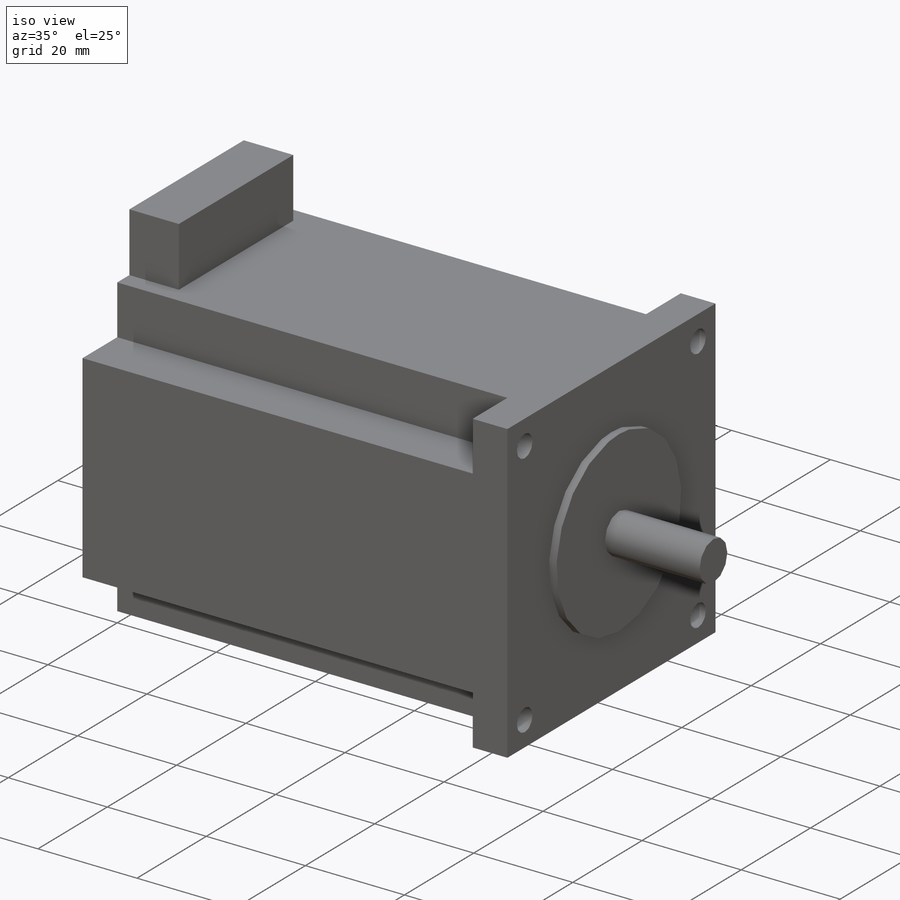
[diagram: iso view]
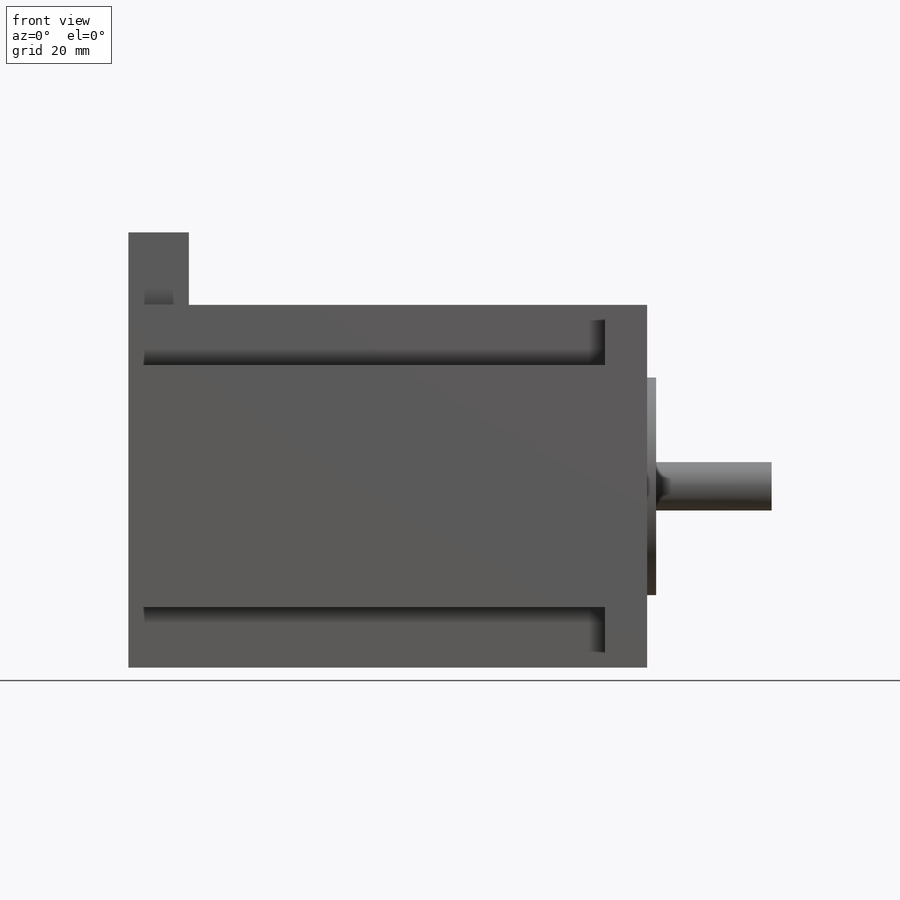
[diagram: front view]
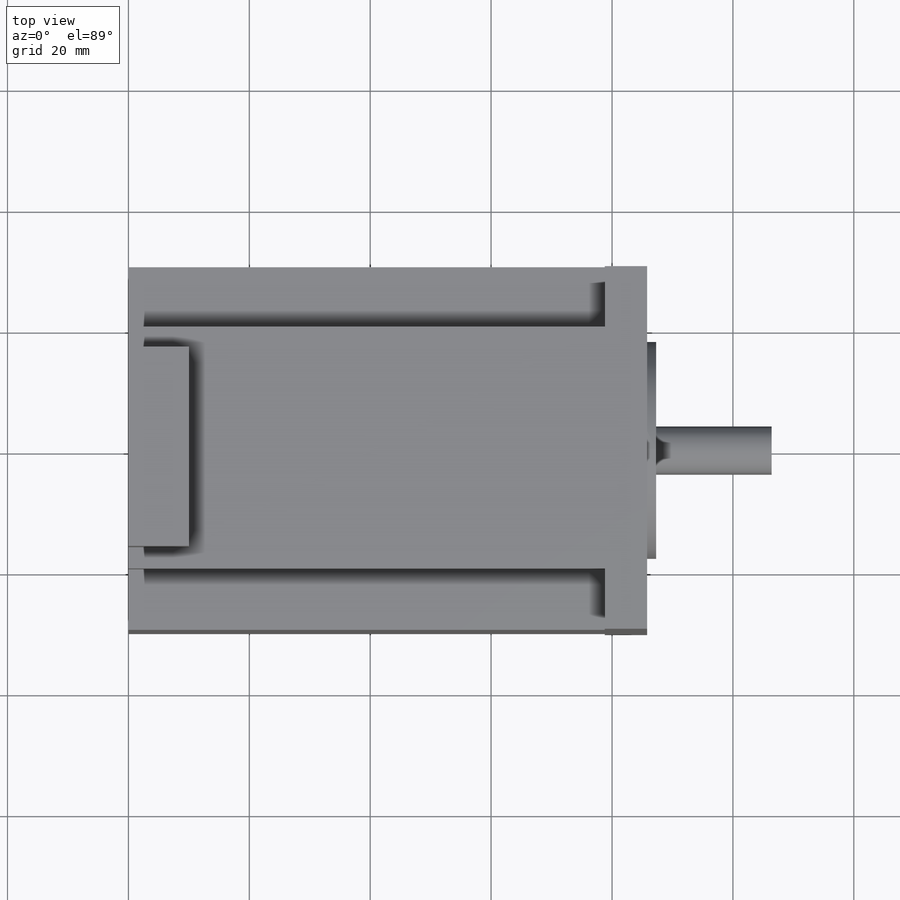
[diagram: top view]
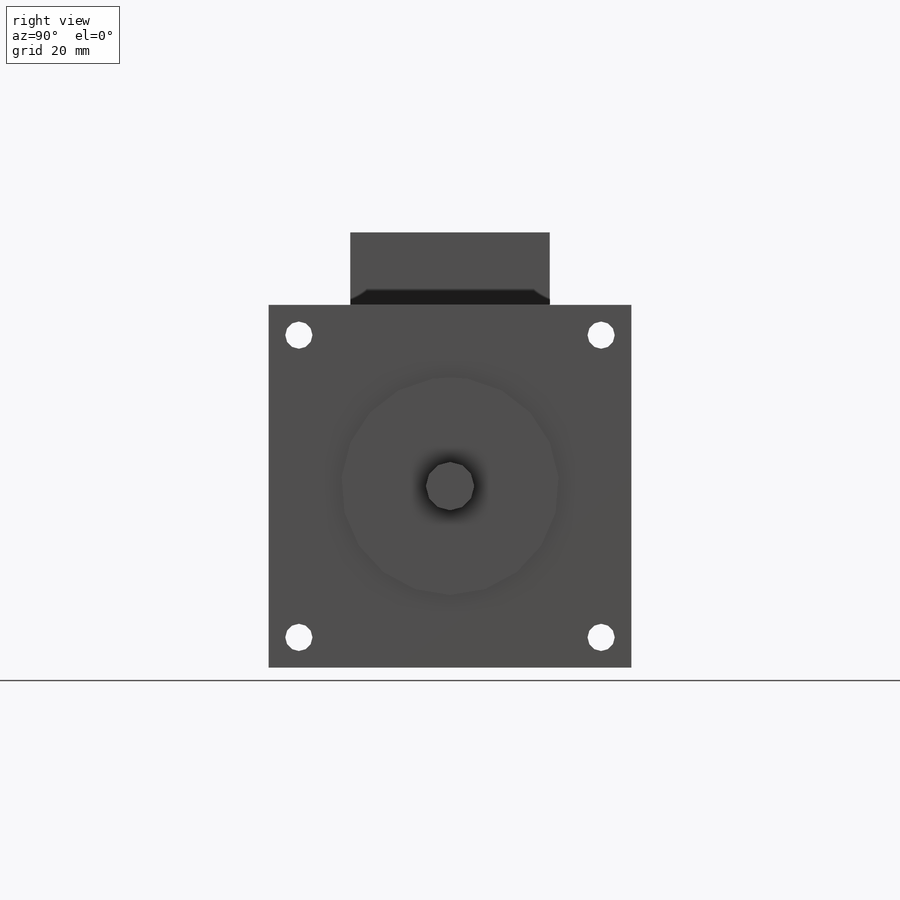
[diagram: right view]
SOLIDWORKS PART (.sldprt)
format: sldprt  version: not decoded by parser v0  size: 297,984 bytes
history: native  units: mm
features: sketch x7, extrude x5, cut_extrude x2, material x1 (+12 scaffold rows collapsed)
feature tree (27):
  scaffold x12  (default folders/planes/origin — collapsed)
  material  "7079 Alloy"
  sketch  "Sketch1"  dims[D1=85.8mm D2=60.0mm D3=10.0mm]
  extrude  "Extrude1"  Depth=60mm
  extrude  "Extrude2"  [1 undecoded]
  sketch  "Sketch1<5>"  dims[D1=33.0mm]
  sketch  "Sketch2"  dims[D1=~17.976681mm]
  extrude  "Extrude3"  Depth=1.5mm
  extrude  "Extrude4"  [1 undecoded]
  sketch  "Sketch2<2>"  dims[D1=1.5mm]
  sketch  "Sketch4"  dims[D1=~4.021531mm]
  extrude  "Extrude5"  Depth=20.6mm
  sketch  "Sketch5"  dims[D1=50.0mm]
  cut_extrude  "Cut-Extrude1"  Depth=86mm
  sketch  "Sketch6"  dims[D1=10.0mm D2=10.0mm D3=10.0mm D4=10.0mm D5=10.0mm D6=10.0mm D7=10.0mm D8=10.0mm]
  cut_extrude  "Cut-Extrude2"  Depth=78.8mm
decode coverage: 12 of 14 modeling features carry decoded parameters
note: ~ marks probable driven/reference dimensions
note: 2 parameter values undecoded
note: suppression state not decoded; provenance and decode notes live in map.json
